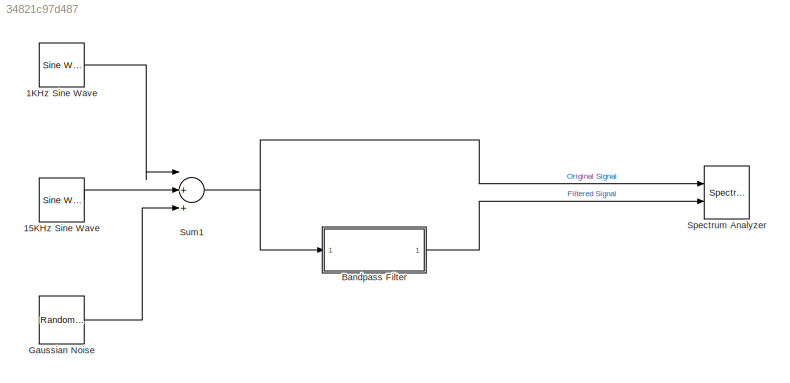
MODEL slx_34821c97d487
KIND model
CONFIG AbsTol = auto
CONFIG FixedStep = auto
CONFIG MaxStep = auto
CONFIG MinStep = auto
CONFIG RelTol = 1e-3
CONFIG SampleTimeConstraint = Unconstrained
CONFIG Solver = FixedStepDiscrete
CONFIG SolverMode = SingleTasking
CONFIG SolverName = FixedStepDiscrete
CONFIG StartTime = 0.0
CONFIG StopTime = inf
BLOCK [Reference] 15KHz Sine Wave  REF=dspsrcs4/Sine Wave
  Ports = [0, 1]
  SourceBlock = dspsrcs4/Sine Wave
  SourceType = Sine Wave
BLOCK [Reference] 1KHz Sine Wave  REF=dspsrcs4/Sine Wave
  Ports = [0, 1]
  SourceBlock = dspsrcs4/Sine Wave
  SourceType = Sine Wave
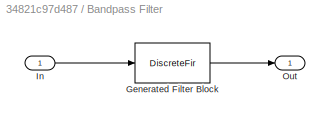
BLOCK [SubSystem] Bandpass Filter
  CopyFcn = fdesignblkfcn(gcbh, {'CopyFcn'});
  DialogController = fdesignblkfcn
  InitFcn = fdesignblkfcn(gcbh, {'InitFcn'});
  Ports = [1, 1]
  RequestExecContextInheritance = off
  UserDataPersistent = on
  Variant = off
BLOCK [DiscreteFir] Bandpass Filter/Generated Filter Block
  Coefficients = [-0.0008992291487744296 0.0016414518747943749 0.0031352071842225397 -0.0040707550828814922 -0.0063731852227904111 0.0074874286806090491 0.0098354319566295711 -0.010189316513446216 -0.011302794465874122 0.0096929185841818435 0.0079428653987464216 -0.0031368247881221642 0.0028299878877943137 -0.011508674243001471 -0.022080136219461581 0.034245325424507672 0.048356661648905473 -0.062355369169884239 -...<+647ch>
  InputPortMap = u0
  InputProcessing = Columns as channels (frame based)
  OutputPortMap = o0
  Ports = [1, 1]
  Tag = BlockMethodSubSystem
BLOCK [Inport] Bandpass Filter/In
  IconDisplay = Port number
BLOCK [Outport] Bandpass Filter/Out
  IconDisplay = Port number
BLOCK [Reference] Gaussian Noise  REF=dspsrcs4/Random
Source
  Ports = [0, 1]
  SourceBlock = dspsrcs4/Random\nSource
  SourceType = Random Source
  UserDataPersistent = on
BLOCK [SpectrumAnalyzer] Spectrum Analyzer
  NumInputPorts = 2
  Ports = [2]
  ScopeSpecificationString = spbscopes.SpectrumAnalyzerBlockCfg('CurrentConfiguration', extmgr.ConfigurationSet(extmgr.Configuration('Core','General UI',true),extmgr.Configuration('Core','Source UI',true),extmgr.Configuration('Sources','WiredSimulink',true),extmgr.Configuration('Visuals','Spectrum',true,'AxesProperties',struct('Color',[0 0 0],'XColor',[0.686274509803922 0.686274509803922 0.686274509803922],'YColor',[0.6862745...<+1617ch>
BLOCK [Sum] Sum1
  InputSameDT = off
  Inputs = |+++
  OutDataTypeStr = Inherit: Inherit via internal rule
  Ports = [3, 1]
  SaturateOnIntegerOverflow = off
LINE 15KHz Sine Wave:1 -> Sum1:2
LINE 1KHz Sine Wave:1 -> Sum1:1
LINE Bandpass Filter:1 -> Spectrum Analyzer:2
LINE Gaussian Noise:1 -> Sum1:3
NET Sum1:1 -> Bandpass Filter:1, Spectrum Analyzer:1
note: NET lines group one-source signal fan-out (src -> all destinations, sorted); 1:1 wires keep LINE
